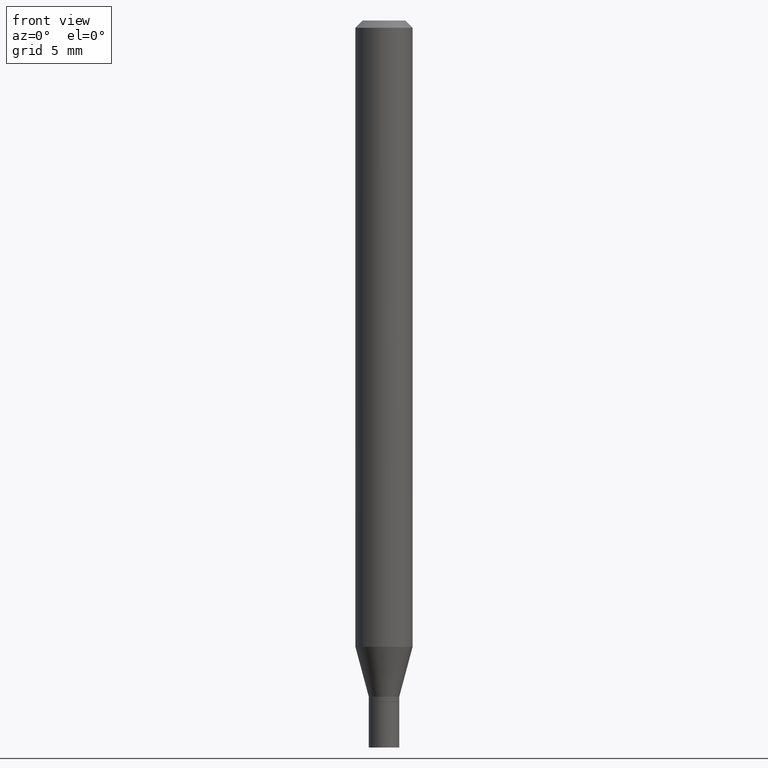
[diagram: clean part render]
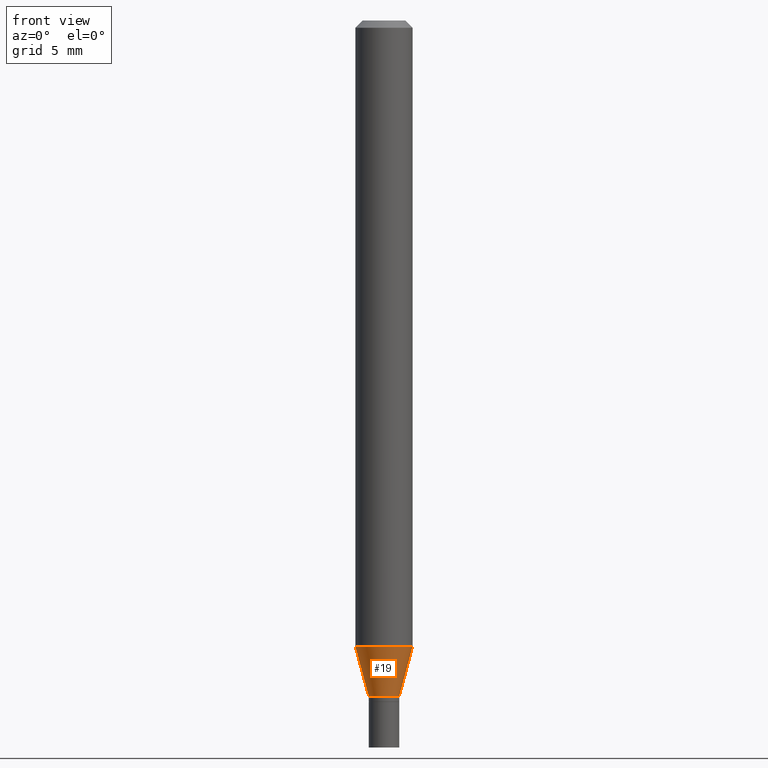
[diagram: same view with one face highlighted and labeled with its STEP entity id]
A machine part, front view. The second image highlights one B-rep face of the part: STEP entity #19.
In plain terms, the highlighted conical surface has half-angle 15 deg.
Its self-contained STEP definition (entity closure, byte-faithful):
#19 = ADVANCED_FACE ( 'NONE', ( #38 ), #291, .T. ) ;
#27 = CARTESIAN_POINT ( 'NONE',  ( -0.05904999999999999832, -4.092053854800706123E-15, -1.292182000251478113 ) ) ;
#30 = DIRECTION ( 'NONE',  ( 0.2588190451025205729, 1.565188264969628081E-15, 0.9659258262890684232 ) ) ;
#38 = FACE_OUTER_BOUND ( 'NONE', #82, .T. ) ;
#49 = VERTEX_POINT ( 'NONE', #27 ) ;
#62 = CIRCLE ( 'NONE', #306, 0.03150000000000020145 ) ;
#63 = DIRECTION ( 'NONE',  ( 1.000000000000000000, -6.982962677686272233E-15, 0.000000000000000000 ) ) ;
#64 = DIRECTION ( 'NONE',  ( 1.000000000000000000, -6.982962677686272233E-15, 0.000000000000000000 ) ) ;
#73 = DIRECTION ( 'NONE',  ( -0.2588190451025205729, 5.211531920934545520E-15, 0.9659258262890684232 ) ) ;
#76 = CARTESIAN_POINT ( 'NONE',  ( -0.03150000000000020145, -4.646795505921755287E-15, -1.395000000000000018 ) ) ;
#81 = EDGE_CURVE ( 'NONE', #351, #200, #300, .T. ) ;
#82 = EDGE_LOOP ( 'NONE', ( #162, #403, #237, #315 ) ) ;
#117 = CARTESIAN_POINT ( 'NONE',  ( 0.03150000000000020145, -5.090579792033307144E-15, -1.395000000000000018 ) ) ;
#123 = CARTESIAN_POINT ( 'NONE',  ( 3.159990773528904533E-29, -4.511629340267044828E-15, -1.292182000251478113 ) ) ;
#132 = DIRECTION ( 'NONE',  ( -2.445468806185136597E-29, 3.491481338843145583E-15, 1.000000000000000000 ) ) ;
#162 = ORIENTED_EDGE ( 'NONE', *, *, #263, .F. ) ;
#163 = AXIS2_PLACEMENT_3D ( 'NONE', #321, #244, #63 ) ;
#200 = VERTEX_POINT ( 'NONE', #265 ) ;
#217 = CIRCLE ( 'NONE', #318, 0.05904999999999999832 ) ;
#221 = CARTESIAN_POINT ( 'NONE',  ( 3.411428984628265351E-29, -4.870616467686188228E-15, -1.395000000000000018 ) ) ;
#237 = ORIENTED_EDGE ( 'NONE', *, *, #81, .T. ) ;
#244 = DIRECTION ( 'NONE',  ( -2.445468806185136597E-29, 3.491481338843145583E-15, 1.000000000000000000 ) ) ;
#263 = EDGE_CURVE ( 'NONE', #340, #49, #325, .T. ) ;
#265 = CARTESIAN_POINT ( 'NONE',  ( 0.05904999999999999832, -4.923973286384418959E-15, -1.292182000251478113 ) ) ;
#271 = DIRECTION ( 'NONE',  ( 1.000000000000000000, -6.982962677686273021E-15, 0.000000000000000000 ) ) ;
#291 = CONICAL_SURFACE ( 'NONE', #163, 0.03150000000000020145, 0.2617993877991492413 ) ;
#300 = LINE ( 'NONE', #346, #457 ) ;
#306 = AXIS2_PLACEMENT_3D ( 'NONE', #221, #132, #64 ) ;
#315 = ORIENTED_EDGE ( 'NONE', *, *, #317, .F. ) ;
#317 = EDGE_CURVE ( 'NONE', #49, #200, #217, .T. ) ;
#318 = AXIS2_PLACEMENT_3D ( 'NONE', #123, #348, #271 ) ;
#321 = CARTESIAN_POINT ( 'NONE',  ( 3.411428984628265351E-29, -4.870616467686188228E-15, -1.395000000000000018 ) ) ;
#325 = LINE ( 'NONE', #76, #395 ) ;
#340 = VERTEX_POINT ( 'NONE', #414 ) ;
#346 = CARTESIAN_POINT ( 'NONE',  ( 0.03150000000000020145, -5.090579792033307144E-15, -1.395000000000000018 ) ) ;
#348 = DIRECTION ( 'NONE',  ( -2.445468806185136597E-29, 3.491481338843145583E-15, 1.000000000000000000 ) ) ;
#351 = VERTEX_POINT ( 'NONE', #117 ) ;
#395 = VECTOR ( 'NONE', #73, 39.37007874015748143 ) ;
#403 = ORIENTED_EDGE ( 'NONE', *, *, #466, .T. ) ;
#414 = CARTESIAN_POINT ( 'NONE',  ( -0.03150000000000020145, -4.369424680361230311E-15, -1.395000000000000018 ) ) ;
#457 = VECTOR ( 'NONE', #30, 39.37007874015748143 ) ;
#466 = EDGE_CURVE ( 'NONE', #340, #351, #62, .T. ) ;